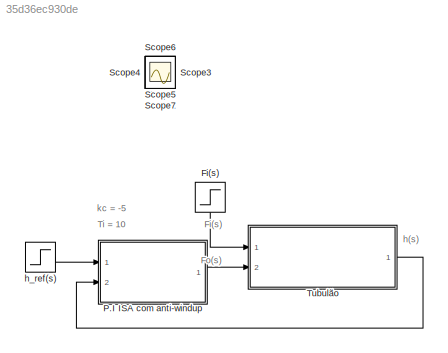
MODEL slx_35d36ec930de
KIND model
CONFIG AbsTol = auto
CONFIG EnableMultiTasking = on
CONFIG FixedStep = auto
CONFIG MaxStep = 1e-2
CONFIG MinStep = auto
CONFIG RelTol = 1e-3
CONFIG SampleTimeConstraint = Unconstrained
CONFIG Solver = ode45
CONFIG SolverName = ode45
CONFIG StartTime = 0.0
CONFIG StopTime = 100
BLOCK [Step] Fi(s)
  SampleTime = 0
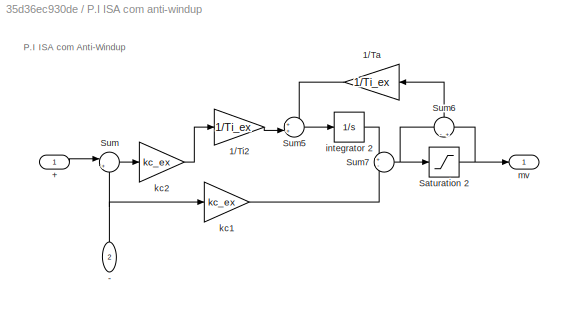
BLOCK [SubSystem] P.I ISA com anti-windup
  Ports = [2, 1]
  RequestExecContextInheritance = off
BLOCK [Inport] P.I ISA com anti-windup/+
  IconDisplay = Port number
BLOCK [Inport] P.I ISA com anti-windup/-
  IconDisplay = Port number
  Port = 2
BLOCK [Gain] P.I ISA com anti-windup/1//Ta
  Gain = 1/Ti_ex
  OutDataTypeStr = Inherit: Inherit via internal rule
  ParamDataTypeStr = Inherit: Inherit via internal rule
  SaturateOnIntegerOverflow = off
BLOCK [Gain] P.I ISA com anti-windup/1//Ti2
  Gain = 1/Ti_ex
  OutDataTypeStr = Inherit: Inherit via internal rule
  ParamDataTypeStr = Inherit: Inherit via internal rule
  SaturateOnIntegerOverflow = off
BLOCK [Saturate] P.I ISA com anti-windup/Saturation 2
  InputPortMap = u0
  LowerLimit = 0
  Ports = [1, 1]
  UpperLimit = 2
BLOCK [Sum] P.I ISA com anti-windup/Sum
  IconShape = round
  InputSameDT = off
  Inputs = |+-
  OutDataTypeStr = Inherit: Inherit via internal rule
  Ports = [2, 1]
  SaturateOnIntegerOverflow = off
BLOCK [Sum] P.I ISA com anti-windup/Sum5
  IconShape = round
  InputSameDT = off
  Inputs = ++|
  OutDataTypeStr = Inherit: Inherit via internal rule
  Ports = [2, 1]
  SaturateOnIntegerOverflow = off
BLOCK [Sum] P.I ISA com anti-windup/Sum6
  IconShape = round
  InputSameDT = off
  Inputs = -+
  OutDataTypeStr = Inherit: Inherit via internal rule
  Ports = [2, 1]
  SaturateOnIntegerOverflow = off
BLOCK [Sum] P.I ISA com anti-windup/Sum7
  IconShape = round
  InputSameDT = off
  Inputs = +-
  OutDataTypeStr = Inherit: Inherit via internal rule
  Ports = [2, 1]
  SaturateOnIntegerOverflow = off
BLOCK [Integrator] P.I ISA com anti-windup/integrator 2
  Ports = [1, 1]
BLOCK [Gain] P.I ISA com anti-windup/kc1
  Gain = kc_ex
  OutDataTypeStr = Inherit: Inherit via internal rule
  ParamDataTypeStr = Inherit: Inherit via internal rule
  SaturateOnIntegerOverflow = off
BLOCK [Gain] P.I ISA com anti-windup/kc2
  Gain = kc_ex
  OutDataTypeStr = Inherit: Inherit via internal rule
  ParamDataTypeStr = Inherit: Inherit via internal rule
  SaturateOnIntegerOverflow = off
BLOCK [Outport] P.I ISA com anti-windup/mv
  IconDisplay = Port number
BLOCK [Scope] Scope
  Floating = off
  IOType = viewer
  NumInputPorts = 1
  Ports = []
  ScopeSpecificationString = Simulink.scopes.TimeScopeBlockCfg('CurrentConfiguration', extmgr.ConfigurationSet(extmgr.Configuration('Core','General UI',true,'FigureColor',[1 1 1]),extmgr.Configuration('Core','Source UI',true),extmgr.Configuration('Sources','WiredSimulink',true,'DataLoggingVariableName','ScopeData1'),extmgr.Configuration('Visuals','Time Domain',true,'SerializedDisplays',{struct('MinYLimReal','-0.03131','MaxYLi...<+1802ch>
BLOCK [Scope] Scope1
  Floating = off
  IOType = viewer
  NumInputPorts = 1
  Ports = []
  ScopeSpecificationString = Simulink.scopes.TimeScopeBlockCfg('CurrentConfiguration', extmgr.ConfigurationSet(extmgr.Configuration('Core','General UI',true,'FigureColor',[1 1 1]),extmgr.Configuration('Core','Source UI',true),extmgr.Configuration('Sources','WiredSimulink',true,'DataLoggingVariableName','ScopeData2'),extmgr.Configuration('Visuals','Time Domain',true,'SerializedDisplays',{struct('MinYLimReal','-0.2268','MaxYLim...<+1730ch>
BLOCK [Scope] Scope2
  Floating = off
  IOType = viewer
  NumInputPorts = 1
  Ports = []
  ScopeSpecificationString = Simulink.scopes.TimeScopeBlockCfg('CurrentConfiguration', extmgr.ConfigurationSet(extmgr.Configuration('Core','General UI',true,'FigureColor',[1 1 1]),extmgr.Configuration('Core','Source UI',true),extmgr.Configuration('Sources','WiredSimulink',true,'DataLoggingVariableName','ScopeData4'),extmgr.Configuration('Visuals','Time Domain',true,'SerializedDisplays',{struct('MinYLimReal','-0.24125','MaxYLi...<+1649ch>
BLOCK [Scope] Scope3
  Floating = off
  IOType = viewer
  NumInputPorts = 1
  Ports = []
  ScopeSpecificationString = Simulink.scopes.TimeScopeBlockCfg('CurrentConfiguration', extmgr.ConfigurationSet(extmgr.Configuration('Core','General UI',true),extmgr.Configuration('Core','Source UI',true),extmgr.Configuration('Sources','WiredSimulink',true),extmgr.Configuration('Visuals','Time Domain',true,'SerializedDisplays',{struct('MinYLimReal','-1.00000','MaxYLimReal','1.00000','YLabelReal','','MinYLimMag','0.00000','MaxY...<+1345ch>
BLOCK [Scope] Scope4
  Floating = off
  IOType = viewer
  NumInputPorts = 1
  Ports = []
  ScopeSpecificationString = Simulink.scopes.TimeScopeBlockCfg('CurrentConfiguration', extmgr.ConfigurationSet(extmgr.Configuration('Core','General UI',true),extmgr.Configuration('Core','Source UI',true),extmgr.Configuration('Sources','WiredSimulink',true,'DataLoggingVariableName','ScopeData2'),extmgr.Configuration('Visuals','Time Domain',true,'SerializedDisplays',{struct('MinYLimReal','-0.125','MaxYLimReal','1.125','YLabelRe...<+1391ch>
BLOCK [Scope] Scope5
  Floating = off
  IOType = viewer
  NumInputPorts = 1
  Ports = []
  ScopeSpecificationString = Simulink.scopes.TimeScopeBlockCfg('CurrentConfiguration', extmgr.ConfigurationSet(extmgr.Configuration('Core','General UI',true),extmgr.Configuration('Core','Source UI',true),extmgr.Configuration('Sources','WiredSimulink',true,'DataLoggingVariableName','ScopeData5'),extmgr.Configuration('Visuals','Time Domain',true,'SerializedDisplays',{struct('MinYLimReal','-0.15625','MaxYLimReal','1.40625','YLab...<+1359ch>
BLOCK [Scope] Scope6
  Floating = off
  IOType = viewer
  NumInputPorts = 1
  Ports = []
  ScopeSpecificationString = Simulink.scopes.TimeScopeBlockCfg('CurrentConfiguration', extmgr.ConfigurationSet(extmgr.Configuration('Core','General UI',true),extmgr.Configuration('Core','Source UI',true),extmgr.Configuration('Sources','WiredSimulink',true,'DataLoggingVariableName','ScopeData6'),extmgr.Configuration('Visuals','Time Domain',true,'SerializedDisplays',{struct('MinYLimReal','-0.125','MaxYLimReal','1.125','YLabelRe...<+1347ch>
BLOCK [Scope] Scope7
  Floating = off
  IOType = viewer
  NumInputPorts = 1
  Ports = []
  ScopeSpecificationString = Simulink.scopes.TimeScopeBlockCfg('CurrentConfiguration', extmgr.ConfigurationSet(extmgr.Configuration('Core','General UI',true,'FigureColor',[1 1 1]),extmgr.Configuration('Core','Source UI',true),extmgr.Configuration('Sources','WiredSimulink',true,'DataLoggingVariableName','ScopeData1'),extmgr.Configuration('Visuals','Time Domain',true,'SerializedDisplays',{struct('MinYLimReal','-0.15819','MaxYLi...<+1760ch>
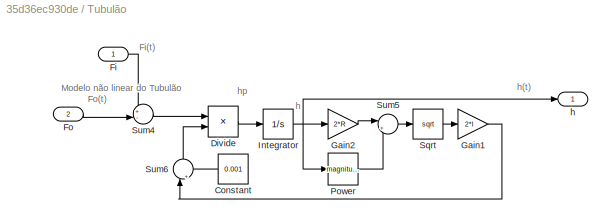
BLOCK [SubSystem] Tubulão
  Ports = [2, 1]
  RequestExecContextInheritance = off
BLOCK [Constant] Tubulão/Constant
  Value = 0.001
BLOCK [Product] Tubulão/Divide
  InputSameDT = off
  Inputs = */
  OutDataTypeStr = Inherit: Inherit via internal rule
  Ports = [2, 1]
  RndMeth = Floor
  SaturateOnIntegerOverflow = off
BLOCK [Inport] Tubulão/Fi
  IconDisplay = Port number
BLOCK [Inport] Tubulão/Fo
  IconDisplay = Port number
  Port = 2
BLOCK [Gain] Tubulão/Gain1
  Gain = 2*l
  OutDataTypeStr = Inherit: Inherit via internal rule
  ParamDataTypeStr = Inherit: Inherit via internal rule
  SaturateOnIntegerOverflow = off
BLOCK [Gain] Tubulão/Gain2
  Gain = 2*R
  OutDataTypeStr = Inherit: Inherit via internal rule
  ParamDataTypeStr = Inherit: Inherit via internal rule
  SaturateOnIntegerOverflow = off
BLOCK [Integrator] Tubulão/Integrator
  LimitOutput = on
  LowerSaturationLimit = 0
  Ports = [1, 1]
  UpperSaturationLimit = 2*R
BLOCK [Math] Tubulão/Power
  Operator = magnitude^2
  Ports = [1, 1]
BLOCK [Sqrt] Tubulão/Sqrt
BLOCK [Sum] Tubulão/Sum4
  IconShape = round
  InputSameDT = off
  Inputs = +-|
  OutDataTypeStr = Inherit: Inherit via internal rule
  Ports = [2, 1]
  SaturateOnIntegerOverflow = off
BLOCK [Sum] Tubulão/Sum5
  IconShape = round
  InputSameDT = off
  Inputs = |+-
  OutDataTypeStr = Inherit: Inherit via internal rule
  Ports = [2, 1]
  SaturateOnIntegerOverflow = off
BLOCK [Sum] Tubulão/Sum6
  IconShape = round
  InputSameDT = off
  Inputs = |++
  OutDataTypeStr = Inherit: Inherit via internal rule
  Ports = [2, 1]
  SaturateOnIntegerOverflow = off
BLOCK [Outport] Tubulão/h
  IconDisplay = Port number
BLOCK [Step] h_ref(s)
  After = R/2
  Before = R
  SampleTime = 0
  Time = 50
ANNOTATION (root): Fi(s)
ANNOTATION (root): Fo(s)
ANNOTATION (root): Ti = 10
ANNOTATION (root): h(s)
ANNOTATION (root): kc = -5
ANNOTATION P.I ISA com anti-windup: P.I ISA com Anti-Windup
ANNOTATION Tubulão: Modelo não linear do Tubulão
ANNOTATION Tubulão: Fi(t)
ANNOTATION Tubulão: Fo(t)
ANNOTATION Tubulão: h
ANNOTATION Tubulão: h(t)
ANNOTATION Tubulão: hp
LINE Fi(s):1 -> Tubulão:1
LINE P.I ISA com anti-windup/+:1 -> P.I ISA com anti-windup/Sum:1
NET P.I ISA com anti-windup/-:1 -> P.I ISA com anti-windup/Sum:2, P.I ISA com anti-windup/kc1:1
LINE P.I ISA com anti-windup/1//Ta:1 -> P.I ISA com anti-windup/Sum5:1
LINE P.I ISA com anti-windup/1//Ti2:1 -> P.I ISA com anti-windup/Sum5:2
NET P.I ISA com anti-windup/Saturation 2:1 -> P.I ISA com anti-windup/Sum6:2, P.I ISA com anti-windup/mv:1
LINE P.I ISA com anti-windup/Sum5:1 -> P.I ISA com anti-windup/integrator 2:1
LINE P.I ISA com anti-windup/Sum6:1 -> P.I ISA com anti-windup/1//Ta:1
NET P.I ISA com anti-windup/Sum7:1 -> P.I ISA com anti-windup/Saturation 2:1, P.I ISA com anti-windup/Sum6:1
LINE P.I ISA com anti-windup/Sum:1 -> P.I ISA com anti-windup/kc2:1
LINE P.I ISA com anti-windup/integrator 2:1 -> P.I ISA com anti-windup/Sum7:1
LINE P.I ISA com anti-windup/kc1:1 -> P.I ISA com anti-windup/Sum7:2
LINE P.I ISA com anti-windup/kc2:1 -> P.I ISA com anti-windup/1//Ti2:1
LINE P.I ISA com anti-windup:1 -> Tubulão:2
LINE Tubulão/Constant:1 -> Tubulão/Sum6:2
LINE Tubulão/Divide:1 -> Tubulão/Integrator:1
LINE Tubulão/Fi:1 -> Tubulão/Sum4:1
LINE Tubulão/Fo:1 -> Tubulão/Sum4:2
LINE Tubulão/Gain1:1 -> Tubulão/Sum6:1
LINE Tubulão/Gain2:1 -> Tubulão/Sum5:1
NET Tubulão/Integrator:1 -> Tubulão/Gain2:1, Tubulão/Power:1, Tubulão/h:1
LINE Tubulão/Power:1 -> Tubulão/Sum5:2
LINE Tubulão/Sqrt:1 -> Tubulão/Gain1:1
LINE Tubulão/Sum4:1 -> Tubulão/Divide:1
LINE Tubulão/Sum5:1 -> Tubulão/Sqrt:1
LINE Tubulão/Sum6:1 -> Tubulão/Divide:2
LINE Tubulão:1 -> P.I ISA com anti-windup:2
LINE h_ref(s):1 -> P.I ISA com anti-windup:1
note: NET lines group one-source signal fan-out (src -> all destinations, sorted); 1:1 wires keep LINE
